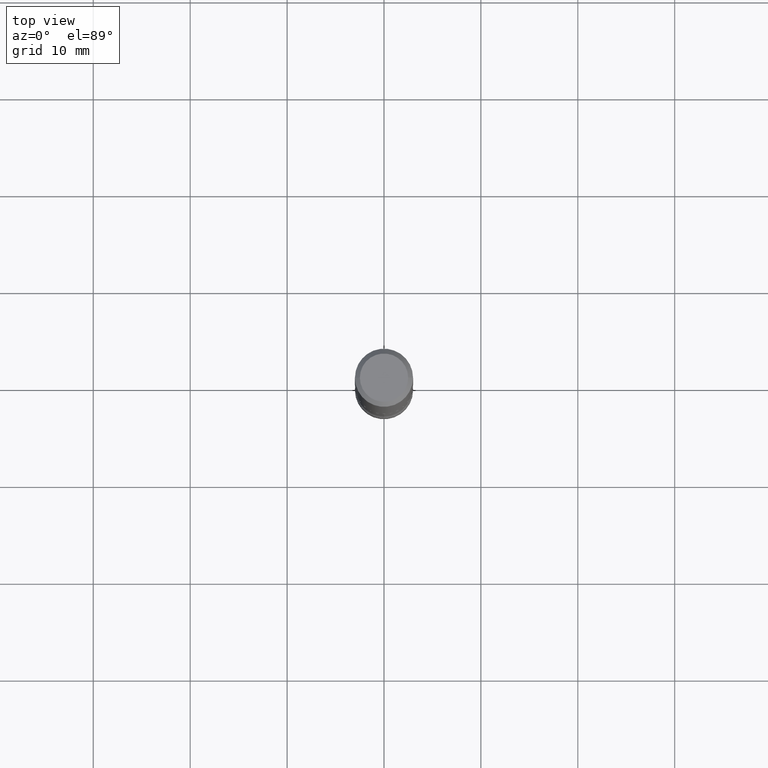
[diagram: clean part render]
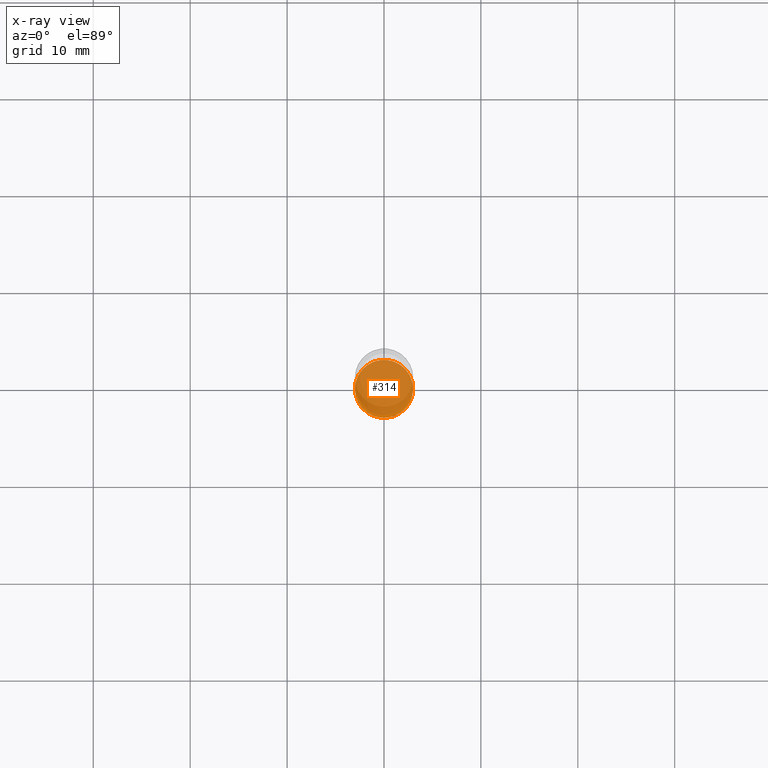
[diagram: x-ray — body ghosted, one internal face saturated and labeled with its STEP entity id]
A machine part, top view, then the same camera in x-ray: the body is ghosted and one INTERNAL B-rep face — a face not visible from any outside direction — is saturated and labeled: STEP entity #314.
In plain terms, the highlighted planar face has unit normal (0, -0, -1).
Its self-contained STEP definition (entity closure, byte-faithful):
#8 = PLANE ( 'NONE',  #110 ) ;
#56 = CARTESIAN_POINT ( 'NONE',  ( -0.1181000000000004407, -8.851804633160347123E-15, -2.637799999999998146 ) ) ;
#91 = CIRCLE ( 'NONE', #245, 0.1181000000000004407 ) ;
#108 = DIRECTION ( 'NONE',  ( -2.445468806185136597E-29, 3.491481338843145583E-15, 1.000000000000000000 ) ) ;
#110 = AXIS2_PLACEMENT_3D ( 'NONE', #295, #179, #351 ) ;
#157 = CARTESIAN_POINT ( 'NONE',  ( 6.450657616955149868E-29, -9.209829475600442370E-15, -2.637799999999998146 ) ) ;
#158 = CIRCLE ( 'NONE', #455, 0.1181000000000004407 ) ;
#170 = ORIENTED_EDGE ( 'NONE', *, *, #416, .T. ) ;
#179 = DIRECTION ( 'NONE',  ( 2.438088387897960049E-29, -3.491481338843145188E-15, -1.000000000000000000 ) ) ;
#214 = EDGE_LOOP ( 'NONE', ( #381, #170 ) ) ;
#243 = EDGE_CURVE ( 'NONE', #387, #373, #158, .T. ) ;
#245 = AXIS2_PLACEMENT_3D ( 'NONE', #157, #370, #545 ) ;
#263 = DIRECTION ( 'NONE',  ( 1.000000000000000000, -6.982962677686262766E-15, 0.000000000000000000 ) ) ;
#295 = CARTESIAN_POINT ( 'NONE',  ( 6.450657616955149868E-29, -9.209829475600442370E-15, -2.637799999999998146 ) ) ;
#314 = ADVANCED_FACE ( 'NONE', ( #409 ), #8, .F. ) ;
#351 = DIRECTION ( 'NONE',  ( -1.000000000000000000, 6.982962677686265922E-15, -4.876176775795935793E-29 ) ) ;
#370 = DIRECTION ( 'NONE',  ( -2.445468806185136597E-29, 3.491481338843145583E-15, 1.000000000000000000 ) ) ;
#373 = VERTEX_POINT ( 'NONE', #56 ) ;
#381 = ORIENTED_EDGE ( 'NONE', *, *, #243, .T. ) ;
#387 = VERTEX_POINT ( 'NONE', #462 ) ;
#409 = FACE_OUTER_BOUND ( 'NONE', #214, .T. ) ;
#416 = EDGE_CURVE ( 'NONE', #373, #387, #91, .T. ) ;
#455 = AXIS2_PLACEMENT_3D ( 'NONE', #510, #108, #263 ) ;
#462 = CARTESIAN_POINT ( 'NONE',  ( 0.1181000000000004407, -1.003451736783519379E-14, -2.637799999999998146 ) ) ;
#510 = CARTESIAN_POINT ( 'NONE',  ( 6.450657616955149868E-29, -9.209829475600442370E-15, -2.637799999999998146 ) ) ;
#545 = DIRECTION ( 'NONE',  ( 1.000000000000000000, -6.982962677686262766E-15, 0.000000000000000000 ) ) ;